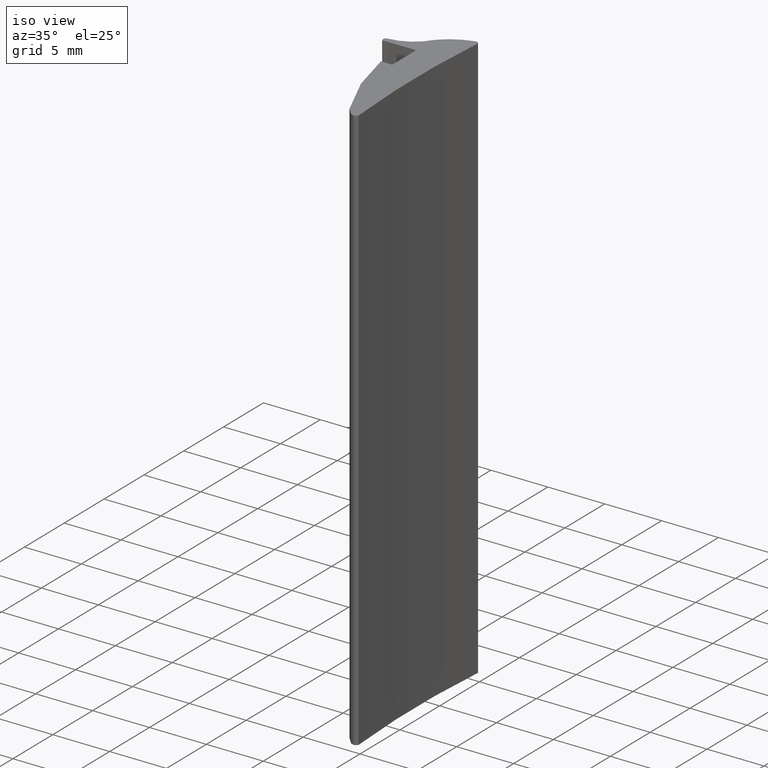
[diagram: clean part render]
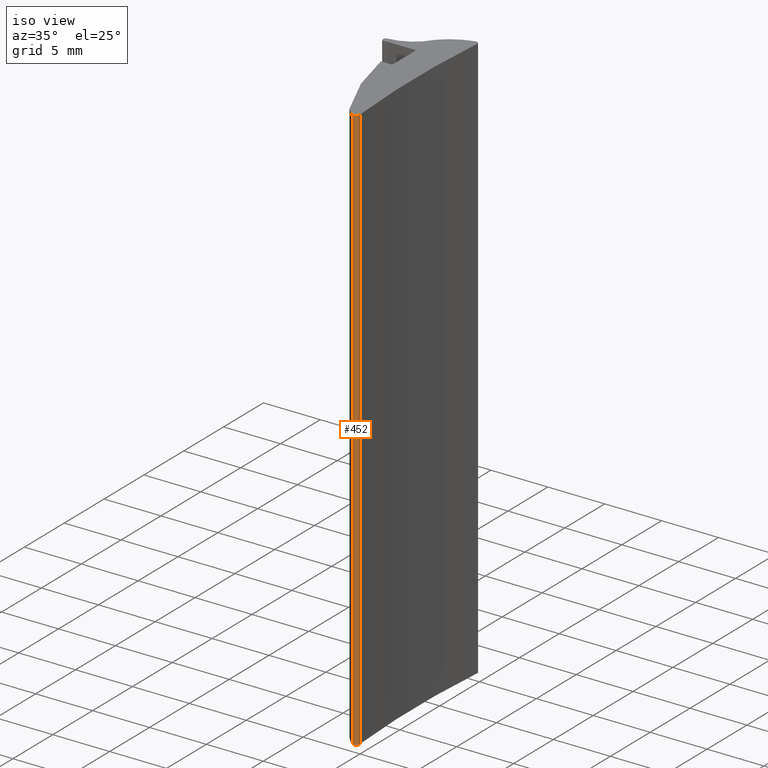
[diagram: same view with one face highlighted and labeled with its STEP entity id]
A machine part, iso view. The second image highlights one B-rep face of the part: STEP entity #452.
In plain terms, the highlighted cylindrical surface (edge-blend (fillet) strip) has radius 0.2855 mm, axis along (0, 0, 1).
Its self-contained STEP definition (entity closure, byte-faithful):
#394=CARTESIAN_POINT('',(-0.343704143695504,-0.374408636881071,0.0));
#395=VERTEX_POINT('',#394);
#402=CARTESIAN_POINT('',(-0.343704143695504,-0.374408636881071,50.0));
#403=VERTEX_POINT('',#402);
#404=CARTESIAN_POINT('',(-0.343704143695504,-0.374408636881071,0.0));
#405=DIRECTION('',(0.0,0.0,1.0));
#406=VECTOR('',#405,50.0);
#407=LINE('',#404,#406);
#408=EDGE_CURVE('',#395,#403,#407,.T.);
#420=CARTESIAN_POINT('',(-0.267644461038344,-0.099267668865195,0.0));
#421=DIRECTION('',(0.0,0.0,1.0));
#422=DIRECTION('',(-0.266445673116970,-0.963849938152846,0.0));
#423=AXIS2_PLACEMENT_3D('',#420,#421,#422);
#424=CYLINDRICAL_SURFACE('',#423,0.285460378348242);
#425=CARTESIAN_POINT('',(0.0,0.0,0.0));
#426=VERTEX_POINT('',#425);
#427=CARTESIAN_POINT('',(-0.267644461038344,-0.099267668865195,0.0));
#428=DIRECTION('',(0.0,0.0,1.0));
#429=DIRECTION('',(1.0,0.0,0.0));
#430=AXIS2_PLACEMENT_3D('',#427,#428,#429);
#431=CIRCLE('',#430,0.285460378348242);
#432=EDGE_CURVE('',#395,#426,#431,.T.);
#433=ORIENTED_EDGE('',*,*,#432,.T.);
#434=CARTESIAN_POINT('',(0.0,0.0,50.0));
#435=VERTEX_POINT('',#434);
#436=CARTESIAN_POINT('',(0.0,0.0,0.0));
#437=DIRECTION('',(0.0,0.0,1.0));
#438=VECTOR('',#437,50.0);
#439=LINE('',#436,#438);
#440=EDGE_CURVE('',#426,#435,#439,.T.);
#441=ORIENTED_EDGE('',*,*,#440,.T.);
#442=CARTESIAN_POINT('',(-0.267644461038344,-0.099267668865195,50.0));
#443=DIRECTION('',(0.0,0.0,1.0));
#444=DIRECTION('',(1.0,0.0,0.0));
#445=AXIS2_PLACEMENT_3D('',#442,#443,#444);
#446=CIRCLE('',#445,0.285460378348242);
#447=EDGE_CURVE('',#403,#435,#446,.T.);
#448=ORIENTED_EDGE('',*,*,#447,.F.);
#449=ORIENTED_EDGE('',*,*,#408,.F.);
#450=EDGE_LOOP('',(#433,#441,#448,#449));
#451=FACE_OUTER_BOUND('',#450,.T.);
#452=ADVANCED_FACE('',(#451),#424,.T.);